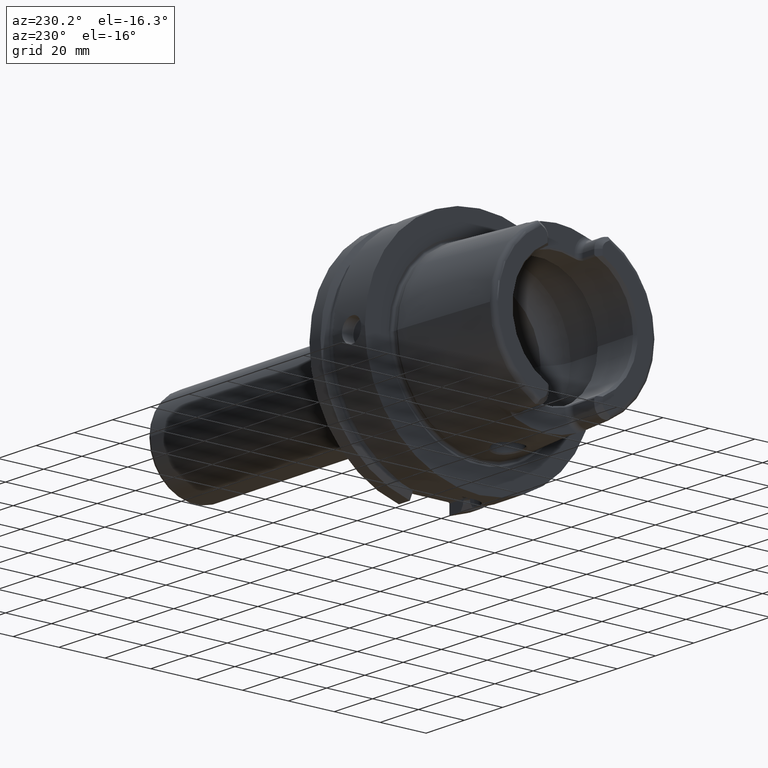
[diagram: clean part render]
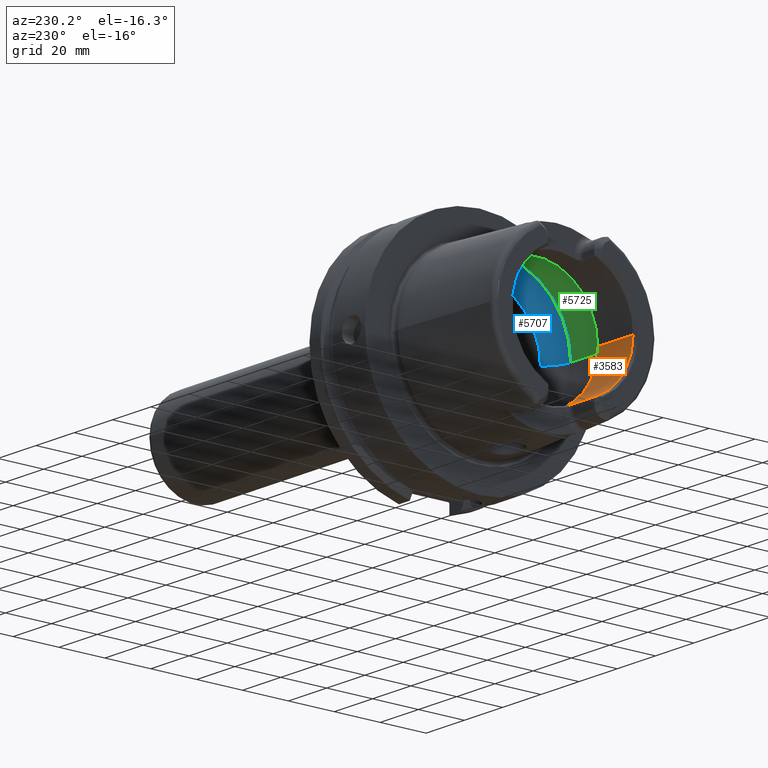
[diagram: same view with three faces highlighted in distinct colors, each labeled with its STEP entity id]
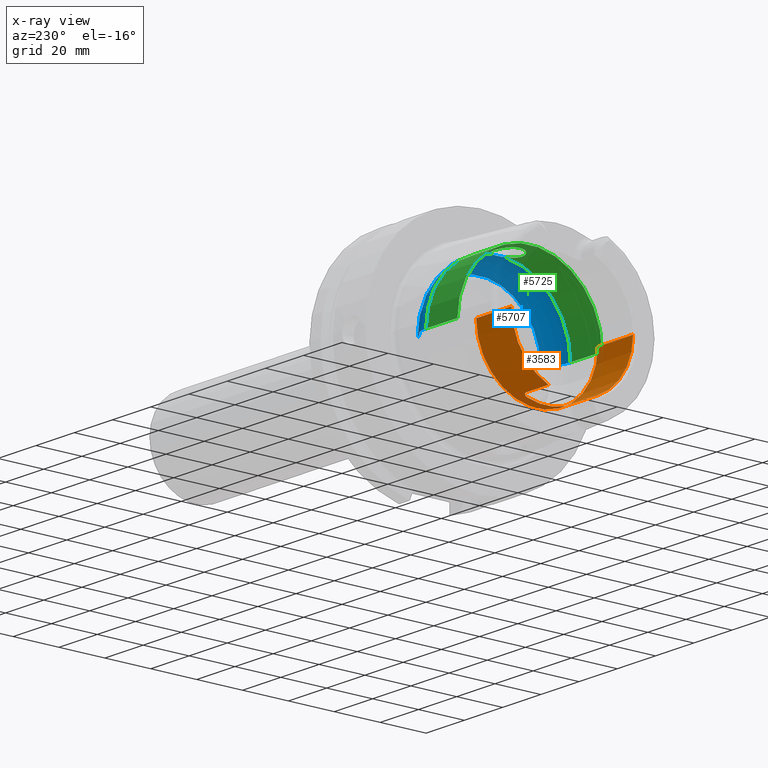
[diagram: x-ray of the same camera — body ghosted, the three highlighted faces saturated]
A machine part, auxiliary view with three faces highlighted in distinct colors.
The next image is the same camera in x-ray (body ghosted, the three faces saturated) — at least one of them is partly hidden behind the body in this view.
Their STEP definitions:

[orange] entity #3583 — the highlighted cylindrical surface (partial cylindrical patch) has radius 26.5 mm, axis along (1, 0, 0).
#152=CARTESIAN_POINT('',(-4.85E1,1.051E1,-2.432673220965E1));
#172=CARTESIAN_POINT('',(-4.85E1,0.E0,0.E0));
#173=DIRECTION('',(-1.E0,0.E0,0.E0));
#174=DIRECTION('',(0.E0,1.E0,0.E0));
#175=AXIS2_PLACEMENT_3D('',#172,#173,#174);
#180=CARTESIAN_POINT('',(-4.85E1,-1.051E1,-2.432673220965E1));
#182=CARTESIAN_POINT('',(-4.85E1,0.E0,0.E0));
#183=DIRECTION('',(-1.E0,0.E0,0.E0));
#184=DIRECTION('',(0.E0,-3.966037735849E-1,-9.179898947038E-1));
#185=AXIS2_PLACEMENT_3D('',#182,#183,#184);
#454=CARTESIAN_POINT('',(-4.85E1,-1.051E1,-2.432673220965E1));
#455=CARTESIAN_POINT('',(-4.846009940760E1,-1.047009940760E1,
-2.434397066250E1));
#456=CARTESIAN_POINT('',(-4.842017594144E1,-1.043017594144E1,
-2.436110250799E1));
#457=CARTESIAN_POINT('',(-4.838022966775E1,-1.039022966775E1,
-2.437812805470E1));
#459=DIRECTION('',(1.E0,0.E0,0.E0));
#460=VECTOR('',#459,1.138022966775E1);
#461=CARTESIAN_POINT('',(-4.838022966775E1,-1.039022966775E1,
-2.437812805470E1));
#462=LINE('',#461,#460);
#463=CARTESIAN_POINT('',(-3.471132486541E1,-8.01E0,-2.526044140549E1));
#464=CARTESIAN_POINT('',(-3.470878365387E1,-8.120563234659E0,
-2.522538218006E1));
#465=CARTESIAN_POINT('',(-3.471906599640E1,-8.340498761004E0,
-2.515406323082E1));
#466=CARTESIAN_POINT('',(-3.478267622202E1,-8.672586520945E0,
-2.504149237512E1));
#467=CARTESIAN_POINT('',(-3.489268945815E1,-8.989467647906E0,
-2.492938353432E1));
#468=CARTESIAN_POINT('',(-3.504052322957E1,-9.277750297862E0,
-2.482340953473E1));
#469=CARTESIAN_POINT('',(-3.522199090026E1,-9.537479373862E0,
-2.472468297045E1));
#470=CARTESIAN_POINT('',(-3.543924040038E1,-9.773195748090E0,
-2.463237051390E1));
#471=CARTESIAN_POINT('',(-3.569196362013E1,-9.980705213956E0,
-2.454892857931E1));
#472=CARTESIAN_POINT('',(-3.598453186629E1,-1.015759575719E1,
-2.447617541727E1));
#473=CARTESIAN_POINT('',(-3.632143240491E1,-1.029570459018E1,
-2.441829554687E1));
#474=CARTESIAN_POINT('',(-3.667918985616E1,-1.037618705974E1,
-2.438412368561E1));
#475=CARTESIAN_POINT('',(-3.689481839480E1,-1.039022966775E1,
-2.437812805470E1));
#476=CARTESIAN_POINT('',(-3.7E1,-1.039022966775E1,-2.437812805470E1));
#478=CARTESIAN_POINT('',(-3.471132486541E1,8.01E0,-2.526044140549E1));
#479=CARTESIAN_POINT('',(-3.471132486541E1,7.271271578955E0,-2.549468967366E1));
#480=CARTESIAN_POINT('',(-3.471132486546E1,5.773250992792E0,-2.589833317849E1));
#481=CARTESIAN_POINT('',(-3.471132486544E1,3.481810319461E0,-2.630458298809E1));
#482=CARTESIAN_POINT('',(-3.471132486544E1,1.163586982585E0,-2.650849211583E1));
#483=CARTESIAN_POINT('',(-3.471132486544E1,-1.163586982585E0,
-2.650849211583E1));
#484=CARTESIAN_POINT('',(-3.471132486544E1,-3.481810319461E0,
-2.630458298809E1));
#485=CARTESIAN_POINT('',(-3.471132486546E1,-5.773250992791E0,
-2.589833317849E1));
#486=CARTESIAN_POINT('',(-3.471132486541E1,-7.271271578958E0,
-2.549468967366E1));
#487=CARTESIAN_POINT('',(-3.471132486541E1,-8.01E0,-2.526044140549E1));
#489=CARTESIAN_POINT('',(-3.7E1,1.039022966775E1,-2.437812805470E1));
#490=CARTESIAN_POINT('',(-3.689375760304E1,1.039022966775E1,-2.437812805470E1));
#491=CARTESIAN_POINT('',(-3.667635124759E1,1.037592175927E1,-2.438423721529E1));
#492=CARTESIAN_POINT('',(-3.631623052643E1,1.029415408513E1,-2.441895189414E1));
#493=CARTESIAN_POINT('',(-3.597947032639E1,1.015497495082E1,-2.447726388108E1));
#494=CARTESIAN_POINT('',(-3.568903934051E1,9.978495762119E0,-2.454982411868E1));
#495=CARTESIAN_POINT('',(-3.543805179144E1,9.771970406757E0,-2.463285308238E1));
#496=CARTESIAN_POINT('',(-3.522178538203E1,9.537157318169E0,-2.472480442904E1));
#497=CARTESIAN_POINT('',(-3.504048499348E1,9.277715471543E0,-2.482342368645E1));
#498=CARTESIAN_POINT('',(-3.489237648633E1,8.988811706632E0,-2.492962282131E1));
#499=CARTESIAN_POINT('',(-3.478230284625E1,8.671343229943E0,-2.504192722240E1));
#500=CARTESIAN_POINT('',(-3.471884880625E1,8.338547582645E0,-2.515470883480E1));
#501=CARTESIAN_POINT('',(-3.470880260289E1,8.119738798873E0,-2.522564360584E1));
#502=CARTESIAN_POINT('',(-3.471132486541E1,8.01E0,-2.526044140549E1));
#504=DIRECTION('',(1.E0,0.E0,0.E0));
#505=VECTOR('',#504,1.138022966775E1);
#506=CARTESIAN_POINT('',(-4.838022966775E1,1.039022966775E1,-2.437812805470E1));
#507=LINE('',#506,#505);
#508=CARTESIAN_POINT('',(-4.838022966775E1,1.039022966775E1,-2.437812805470E1));
#509=CARTESIAN_POINT('',(-4.842017594144E1,1.043017594144E1,-2.436110250799E1));
#510=CARTESIAN_POINT('',(-4.846009940760E1,1.047009940760E1,-2.434397066250E1));
#511=CARTESIAN_POINT('',(-4.85E1,1.051E1,-2.432673220965E1));
#513=DIRECTION('',(-1.E0,0.E0,0.E0));
#514=VECTOR('',#513,1.849662432703E1);
#515=CARTESIAN_POINT('',(-3.000337567297E1,2.65E1,0.E0));
#516=LINE('',#515,#514);
#517=CARTESIAN_POINT('',(-3.000337567297E1,0.E0,0.E0));
#518=DIRECTION('',(-1.E0,0.E0,0.E0));
#519=DIRECTION('',(0.E0,1.E0,0.E0));
#520=AXIS2_PLACEMENT_3D('',#517,#518,#519);
#522=DIRECTION('',(-1.E0,0.E0,0.E0));
#523=VECTOR('',#522,1.849662432703E1);
#524=CARTESIAN_POINT('',(-3.000337567297E1,-2.65E1,0.E0));
#525=LINE('',#524,#523);
#2741=CARTESIAN_POINT('',(-3.000337567297E1,2.65E1,0.E0));
#2742=VERTEX_POINT('',#2741);
#2743=CARTESIAN_POINT('',(-4.85E1,2.65E1,0.E0));
#2744=VERTEX_POINT('',#2743);
#2753=CARTESIAN_POINT('',(-3.000337567297E1,-2.65E1,0.E0));
#2754=VERTEX_POINT('',#2753);
#2755=CARTESIAN_POINT('',(-4.85E1,-2.65E1,0.E0));
#2756=VERTEX_POINT('',#2755);
#2866=CARTESIAN_POINT('',(-3.7E1,-1.039022966775E1,-2.437812805470E1));
#2867=VERTEX_POINT('',#2866);
#2868=CARTESIAN_POINT('',(-3.471132486541E1,-8.01E0,-2.526044140549E1));
#2869=VERTEX_POINT('',#2868);
#2870=CARTESIAN_POINT('',(-3.7E1,1.039022966775E1,-2.437812805470E1));
#2871=VERTEX_POINT('',#2870);
#2872=CARTESIAN_POINT('',(-3.471132486541E1,8.01E0,-2.526044140549E1));
#2873=VERTEX_POINT('',#2872);
#2890=CARTESIAN_POINT('',(-4.838022966775E1,1.039022966775E1,
-2.437812805470E1));
#2891=VERTEX_POINT('',#2890);
#2892=VERTEX_POINT('',#152);
#2909=CARTESIAN_POINT('',(-4.838022966775E1,-1.039022966775E1,
-2.437812805470E1));
#2910=VERTEX_POINT('',#2909);
#2911=VERTEX_POINT('',#180);
#3556=CARTESIAN_POINT('',(-5.3125E1,0.E0,0.E0));
#3557=DIRECTION('',(1.E0,0.E0,0.E0));
#3558=DIRECTION('',(0.E0,-1.E0,0.E0));
#3559=AXIS2_PLACEMENT_3D('',#3556,#3557,#3558);
#3560=CYLINDRICAL_SURFACE('',#3559,2.65E1);
#3562=ORIENTED_EDGE('',*,*,#3561,.T.);
#3564=ORIENTED_EDGE('',*,*,#3563,.T.);
#3566=ORIENTED_EDGE('',*,*,#3565,.F.);
#3568=ORIENTED_EDGE('',*,*,#3567,.F.);
#3570=ORIENTED_EDGE('',*,*,#3569,.F.);
#3571=ORIENTED_EDGE('',*,*,#3548,.F.);
#3572=ORIENTED_EDGE('',*,*,#3280,.T.);
#3573=ORIENTED_EDGE('',*,*,#3302,.F.);
#3575=ORIENTED_EDGE('',*,*,#3574,.F.);
#3577=ORIENTED_EDGE('',*,*,#3576,.T.);
#3579=ORIENTED_EDGE('',*,*,#3578,.T.);
#3580=ORIENTED_EDGE('',*,*,#3314,.F.);
#3581=EDGE_LOOP('',(#3562,#3564,#3566,#3568,#3570,#3571,#3572,#3573,#3575,#3577,
#3579,#3580));
#3582=FACE_OUTER_BOUND('',#3581,.F.);
#3583=ADVANCED_FACE('',(#3582),#3560,.F.);
#176=CIRCLE('',#175,2.65E1);
#186=CIRCLE('',#185,2.65E1);
#458=B_SPLINE_CURVE_WITH_KNOTS('',3,(#454,#455,#456,#457),.UNSPECIFIED.,.F.,.F.,
(4,4),(0.E0,1.E0),.UNSPECIFIED.);
#477=B_SPLINE_CURVE_WITH_KNOTS('',3,(#463,#464,#465,#466,#467,#468,#469,#470,
#471,#472,#473,#474,#475,#476),.UNSPECIFIED.,.F.,.F.,(4,1,1,1,1,1,1,1,1,1,1,4),(
0.E0,9.090909090909E-2,1.818181818182E-1,2.727272727273E-1,3.636363636364E-1,
4.545454545455E-1,5.454545454545E-1,6.363636363636E-1,7.272727272727E-1,
8.181818181818E-1,9.090909090909E-1,1.E0),.UNSPECIFIED.);
#488=B_SPLINE_CURVE_WITH_KNOTS('',3,(#478,#479,#480,#481,#482,#483,#484,#485,
#486,#487),.UNSPECIFIED.,.F.,.F.,(4,1,1,1,1,1,1,4),(0.E0,1.428571428571E-1,
2.857142857143E-1,4.285714285714E-1,5.714285714286E-1,7.142857142857E-1,
8.571428571429E-1,1.E0),.UNSPECIFIED.);
#503=B_SPLINE_CURVE_WITH_KNOTS('',3,(#489,#490,#491,#492,#493,#494,#495,#496,
#497,#498,#499,#500,#501,#502),.UNSPECIFIED.,.F.,.F.,(4,1,1,1,1,1,1,1,1,1,1,4),(
0.E0,9.090909090909E-2,1.818181818182E-1,2.727272727273E-1,3.636363636364E-1,
4.545454545455E-1,5.454545454545E-1,6.363636363636E-1,7.272727272727E-1,
8.181818181818E-1,9.090909090909E-1,1.E0),.UNSPECIFIED.);
#512=B_SPLINE_CURVE_WITH_KNOTS('',3,(#508,#509,#510,#511),.UNSPECIFIED.,.F.,.F.,
(4,4),(0.E0,1.E0),.UNSPECIFIED.);
#521=CIRCLE('',#520,2.65E1);
#3280=EDGE_CURVE('',#2891,#2892,#512,.T.);
#3302=EDGE_CURVE('',#2744,#2892,#176,.T.);
#3314=EDGE_CURVE('',#2911,#2756,#186,.T.);
#3548=EDGE_CURVE('',#2891,#2871,#507,.T.);
#3561=EDGE_CURVE('',#2911,#2910,#458,.T.);
#3563=EDGE_CURVE('',#2910,#2867,#462,.T.);
#3565=EDGE_CURVE('',#2869,#2867,#477,.T.);
#3567=EDGE_CURVE('',#2873,#2869,#488,.T.);
#3569=EDGE_CURVE('',#2871,#2873,#503,.T.);
#3574=EDGE_CURVE('',#2742,#2744,#516,.T.);
#3576=EDGE_CURVE('',#2742,#2754,#521,.T.);
#3578=EDGE_CURVE('',#2754,#2756,#525,.T.);

[blue] entity #5707 — the highlighted toroidal blend (fillet) surface has major radius 19.5 mm and minor (blend) radius 12 mm.
#2062=CARTESIAN_POINT('',(-9.E0,0.E0,3.147008518506E1));
#2063=CARTESIAN_POINT('',(-9.E0,2.141252053900E-1,3.147008518506E1));
#2064=CARTESIAN_POINT('',(-9.022897579641E0,6.436731047292E-1,
3.146736073712E1));
#2065=CARTESIAN_POINT('',(-9.127427069178E0,1.286248325661E0,3.145454181001E1));
#2066=CARTESIAN_POINT('',(-9.301031145484E0,1.913730198969E0,3.143197920586E1));
#2067=CARTESIAN_POINT('',(-9.539946842554E0,2.515068696018E0,3.139832080387E1));
#2068=CARTESIAN_POINT('',(-9.738529982809E0,2.891645116602E0,3.136752560017E1));
#2069=CARTESIAN_POINT('',(-9.846794344809E0,3.073185883624E0,3.134972932139E1));
#2071=CARTESIAN_POINT('',(-9.846794344809E0,-3.073185883624E0,
3.134972932139E1));
#2072=CARTESIAN_POINT('',(-9.738534471789E0,-2.891652643851E0,
3.136752486228E1));
#2073=CARTESIAN_POINT('',(-9.539946477828E0,-2.515078628379E0,
3.139832107651E1));
#2074=CARTESIAN_POINT('',(-9.300974895981E0,-1.913573808680E0,
3.143198691417E1));
#2075=CARTESIAN_POINT('',(-9.127396838585E0,-1.286102505522E0,
3.145454553504E1));
#2076=CARTESIAN_POINT('',(-9.022886850943E0,-6.435548392987E-1,
3.146736203025E1));
#2077=CARTESIAN_POINT('',(-9.E0,-2.140793620984E-1,3.147008518506E1));
#2078=CARTESIAN_POINT('',(-9.E0,0.E0,3.147008518506E1));
#2080=CARTESIAN_POINT('',(-1.E-1,0.E0,0.E0));
#2081=DIRECTION('',(1.E0,0.E0,0.E0));
#2082=DIRECTION('',(0.E0,1.E0,0.E0));
#2083=AXIS2_PLACEMENT_3D('',#2080,#2081,#2082);
#2109=CARTESIAN_POINT('',(-9.846794344809E0,0.E0,0.E0));
#2110=DIRECTION('',(1.E0,0.E0,0.E0));
#2111=DIRECTION('',(0.E0,1.E0,0.E0));
#2112=AXIS2_PLACEMENT_3D('',#2109,#2110,#2111);
#2114=CARTESIAN_POINT('',(-9.846794344809E0,0.E0,0.E0));
#2115=DIRECTION('',(1.E0,0.E0,0.E0));
#2116=DIRECTION('',(0.E0,-9.756145662299E-2,9.952295022665E-1));
#2117=AXIS2_PLACEMENT_3D('',#2114,#2115,#2116);
#2218=CARTESIAN_POINT('',(-9.846794344809E0,1.95E1,0.E0));
#2219=DIRECTION('',(0.E0,0.E0,1.E0));
#2220=DIRECTION('',(8.122328620674E-1,5.833333333333E-1,0.E0));
#2221=AXIS2_PLACEMENT_3D('',#2218,#2219,#2220);
#2228=CARTESIAN_POINT('',(-9.846794344809E0,-1.95E1,0.E0));
#2229=DIRECTION('',(0.E0,0.E0,-1.E0));
#2230=DIRECTION('',(8.122328620674E-1,-5.833333333333E-1,0.E0));
#2231=AXIS2_PLACEMENT_3D('',#2228,#2229,#2230);
#2733=CARTESIAN_POINT('',(-1.E-1,2.65E1,0.E0));
#2734=VERTEX_POINT('',#2733);
#2735=CARTESIAN_POINT('',(-9.846794344809E0,3.15E1,0.E0));
#2736=VERTEX_POINT('',#2735);
#2745=CARTESIAN_POINT('',(-1.E-1,-2.65E1,0.E0));
#2746=VERTEX_POINT('',#2745);
#2747=CARTESIAN_POINT('',(-9.846794344809E0,-3.15E1,0.E0));
#2748=VERTEX_POINT('',#2747);
#2914=VERTEX_POINT('',#2062);
#2915=VERTEX_POINT('',#2069);
#2916=VERTEX_POINT('',#2071);
#5688=CARTESIAN_POINT('',(-9.846794344809E0,0.E0,0.E0));
#5689=DIRECTION('',(1.E0,0.E0,0.E0));
#5690=DIRECTION('',(0.E0,-1.E0,0.E0));
#5691=AXIS2_PLACEMENT_3D('',#5688,#5689,#5690);
#5692=TOROIDAL_SURFACE('',#5691,1.95E1,1.2E1);
#5693=ORIENTED_EDGE('',*,*,#5665,.F.);
#5694=ORIENTED_EDGE('',*,*,#5391,.F.);
#5696=ORIENTED_EDGE('',*,*,#5695,.T.);
#5698=ORIENTED_EDGE('',*,*,#5697,.F.);
#5700=ORIENTED_EDGE('',*,*,#5699,.F.);
#5702=ORIENTED_EDGE('',*,*,#5701,.T.);
#5704=ORIENTED_EDGE('',*,*,#5703,.T.);
#5705=EDGE_LOOP('',(#5693,#5694,#5696,#5698,#5700,#5702,#5704));
#5706=FACE_OUTER_BOUND('',#5705,.F.);
#5707=ADVANCED_FACE('',(#5706),#5692,.F.);
#2070=B_SPLINE_CURVE_WITH_KNOTS('',3,(#2062,#2063,#2064,#2065,#2066,#2067,#2068,
#2069),.UNSPECIFIED.,.F.,.F.,(4,1,1,1,1,4),(0.E0,2.E-1,4.E-1,6.E-1,8.E-1,1.E0),
.UNSPECIFIED.);
#2079=B_SPLINE_CURVE_WITH_KNOTS('',3,(#2071,#2072,#2073,#2074,#2075,#2076,#2077,
#2078),.UNSPECIFIED.,.F.,.F.,(4,1,1,1,1,4),(0.E0,2.E-1,4.E-1,6.E-1,8.E-1,1.E0),
.UNSPECIFIED.);
#2084=CIRCLE('',#2083,2.65E1);
#2113=CIRCLE('',#2112,3.15E1);
#2118=CIRCLE('',#2117,3.15E1);
#2222=CIRCLE('',#2221,1.2E1);
#2232=CIRCLE('',#2231,1.2E1);
#5391=EDGE_CURVE('',#2916,#2914,#2079,.T.);
#5665=EDGE_CURVE('',#2914,#2915,#2070,.T.);
#5695=EDGE_CURVE('',#2916,#2748,#2118,.T.);
#5697=EDGE_CURVE('',#2746,#2748,#2232,.T.);
#5699=EDGE_CURVE('',#2734,#2746,#2084,.T.);
#5701=EDGE_CURVE('',#2734,#2736,#2222,.T.);
#5703=EDGE_CURVE('',#2736,#2915,#2113,.T.);

[green] entity #5725 — the highlighted cylindrical surface (partial cylindrical patch) has radius 31.5 mm, axis along (1, 0, 0).
#2069=CARTESIAN_POINT('',(-9.846794344809E0,3.073185883624E0,3.134972932139E1));
#2071=CARTESIAN_POINT('',(-9.846794344809E0,-3.073185883624E0,
3.134972932139E1));
#2085=CARTESIAN_POINT('',(-9.846794344809E0,3.073185883624E0,3.134972932139E1));
#2086=CARTESIAN_POINT('',(-9.979350610583E0,3.295460007053E0,3.132793998818E1));
#2087=CARTESIAN_POINT('',(-1.027063887730E1,3.719249728918E0,3.128166137702E1));
#2088=CARTESIAN_POINT('',(-1.079035808135E1,4.298920478732E0,3.120689190392E1));
#2089=CARTESIAN_POINT('',(-1.137898274965E1,4.805041081809E0,3.113254787077E1));
#2090=CARTESIAN_POINT('',(-1.202658779818E1,5.230450418473E0,3.106351678434E1));
#2091=CARTESIAN_POINT('',(-1.271973952812E1,5.567575114105E0,3.100453126817E1));
#2092=CARTESIAN_POINT('',(-1.345035493347E1,5.813488696578E0,3.095911024256E1));
#2093=CARTESIAN_POINT('',(-1.420764120587E1,5.964169161635E0,3.093027187856E1));
#2094=CARTESIAN_POINT('',(-1.497984446875E1,6.016521870398E0,3.092007259785E1));
#2095=CARTESIAN_POINT('',(-1.575309935594E1,5.969543750814E0,3.092922961197E1));
#2096=CARTESIAN_POINT('',(-1.652541066125E1,5.820717381311E0,3.095775345043E1));
#2097=CARTESIAN_POINT('',(-1.727341934717E1,5.571094163642E0,3.100391709528E1));
#2098=CARTESIAN_POINT('',(-1.797719195757E1,5.228690177102E0,3.106382935769E1));
#2099=CARTESIAN_POINT('',(-1.863207171596E1,4.797562142056E0,3.113375842146E1));
#2100=CARTESIAN_POINT('',(-1.923624043330E1,4.274224967480E0,3.121040427516E1));
#2101=CARTESIAN_POINT('',(-1.976613927382E1,3.673557002686E0,3.128721124755E1));
#2102=CARTESIAN_POINT('',(-2.020637808011E1,3.016563255921E0,3.135771603394E1));
#2103=CARTESIAN_POINT('',(-2.055582787998E1,2.311076998962E0,3.141795380196E1));
#2104=CARTESIAN_POINT('',(-2.081257397864E1,1.557663843048E0,3.146462805191E1));
#2105=CARTESIAN_POINT('',(-2.096662575255E1,7.779183163064E-1,
3.149361665994E1));
#2106=CARTESIAN_POINT('',(-2.1E1,2.599995876471E-1,3.15E1));
#2107=CARTESIAN_POINT('',(-2.1E1,0.E0,3.15E1));
#2109=CARTESIAN_POINT('',(-9.846794344809E0,0.E0,0.E0));
#2110=DIRECTION('',(1.E0,0.E0,0.E0));
#2111=DIRECTION('',(0.E0,1.E0,0.E0));
#2112=AXIS2_PLACEMENT_3D('',#2109,#2110,#2111);
#2114=CARTESIAN_POINT('',(-9.846794344809E0,0.E0,0.E0));
#2115=DIRECTION('',(1.E0,0.E0,0.E0));
#2116=DIRECTION('',(0.E0,-9.756145662299E-2,9.952295022665E-1));
#2117=AXIS2_PLACEMENT_3D('',#2114,#2115,#2116);
#2119=CARTESIAN_POINT('',(-2.1E1,0.E0,3.15E1));
#2120=CARTESIAN_POINT('',(-2.1E1,-2.571227322628E-1,3.15E1));
#2121=CARTESIAN_POINT('',(-2.096736472421E1,-7.693984126219E-1,
3.149375838501E1));
#2122=CARTESIAN_POINT('',(-2.081659080202E1,-1.541049857093E0,
3.146537963405E1));
#2123=CARTESIAN_POINT('',(-2.056550243220E1,-2.286682308644E0,
3.141968549161E1));
#2124=CARTESIAN_POINT('',(-2.022340587255E1,-2.986151195866E0,
3.136058293097E1));
#2125=CARTESIAN_POINT('',(-1.979326828629E1,-3.637340617479E0,
3.129140992251E1));
#2126=CARTESIAN_POINT('',(-1.927478905529E1,-4.235071698102E0,
3.121573223434E1));
#2127=CARTESIAN_POINT('',(-1.868247740736E1,-4.758599460883E0,
3.113974969594E1));
#2128=CARTESIAN_POINT('',(-1.803686661027E1,-5.194005287447E0,
3.106967109408E1));
#2129=CARTESIAN_POINT('',(-1.734161583992E1,-5.542612510908E0,
3.100904668501E1));
#2130=CARTESIAN_POINT('',(-1.659831672384E1,-5.801097428712E0,
3.096145823760E1));
#2131=CARTESIAN_POINT('',(-1.582796267308E1,-5.959654019058E0,
3.093114785940E1));
#2132=CARTESIAN_POINT('',(-1.505461105168E1,-6.016295452388E0,
3.092011677740E1));
#2133=CARTESIAN_POINT('',(-1.428037054876E1,-5.973681036842E0,
3.092842594800E1));
#2134=CARTESIAN_POINT('',(-1.350797364848E1,-5.829331845562E0,
3.095612333536E1));
#2135=CARTESIAN_POINT('',(-1.275967231567E1,-5.584336729774E0,
3.100151619127E1));
#2136=CARTESIAN_POINT('',(-1.205825931241E1,-5.248465876117E0,
3.106046672590E1));
#2137=CARTESIAN_POINT('',(-1.140515180586E1,-4.825059400574E0,
3.112945635419E1));
#2138=CARTESIAN_POINT('',(-1.080442776173E1,-4.313579447853E0,
3.120492076547E1));
#2139=CARTESIAN_POINT('',(-1.027427619122E1,-3.724621952008E0,
3.128107616940E1));
#2140=CARTESIAN_POINT('',(-9.980265351482E0,-3.296993870656E0,
3.132778962490E1));
#2141=CARTESIAN_POINT('',(-9.846794344809E0,-3.073185883624E0,
3.134972932139E1));
#2196=DIRECTION('',(-1.E0,0.E0,0.E0));
#2197=VECTOR('',#2196,1.640380457843E1);
#2198=CARTESIAN_POINT('',(-9.846794344809E0,-3.15E1,0.E0));
#2199=LINE('',#2198,#2197);
#2200=DIRECTION('',(-1.E0,0.E0,0.E0));
#2201=VECTOR('',#2200,1.640380457843E1);
#2202=CARTESIAN_POINT('',(-9.846794344809E0,3.15E1,0.E0));
#2203=LINE('',#2202,#2201);
#2453=CARTESIAN_POINT('',(-2.625059892324E1,0.E0,0.E0));
#2454=DIRECTION('',(1.E0,0.E0,0.E0));
#2455=DIRECTION('',(0.E0,1.E0,0.E0));
#2456=AXIS2_PLACEMENT_3D('',#2453,#2454,#2455);
#2735=CARTESIAN_POINT('',(-9.846794344809E0,3.15E1,0.E0));
#2736=VERTEX_POINT('',#2735);
#2737=CARTESIAN_POINT('',(-2.625059892324E1,3.15E1,0.E0));
#2738=VERTEX_POINT('',#2737);
#2747=CARTESIAN_POINT('',(-9.846794344809E0,-3.15E1,0.E0));
#2748=VERTEX_POINT('',#2747);
#2749=CARTESIAN_POINT('',(-2.625059892324E1,-3.15E1,0.E0));
#2750=VERTEX_POINT('',#2749);
#2915=VERTEX_POINT('',#2069);
#2916=VERTEX_POINT('',#2071);
#2917=VERTEX_POINT('',#2107);
#5708=CARTESIAN_POINT('',(-5.3125E1,0.E0,0.E0));
#5709=DIRECTION('',(1.E0,0.E0,0.E0));
#5710=DIRECTION('',(0.E0,-1.E0,0.E0));
#5711=AXIS2_PLACEMENT_3D('',#5708,#5709,#5710);
#5712=CYLINDRICAL_SURFACE('',#5711,3.15E1);
#5713=ORIENTED_EDGE('',*,*,#5667,.F.);
#5714=ORIENTED_EDGE('',*,*,#5703,.F.);
#5716=ORIENTED_EDGE('',*,*,#5715,.T.);
#5718=ORIENTED_EDGE('',*,*,#5717,.T.);
#5720=ORIENTED_EDGE('',*,*,#5719,.F.);
#5721=ORIENTED_EDGE('',*,*,#5695,.F.);
#5722=ORIENTED_EDGE('',*,*,#5389,.F.);
#5723=EDGE_LOOP('',(#5713,#5714,#5716,#5718,#5720,#5721,#5722));
#5724=FACE_OUTER_BOUND('',#5723,.F.);
#5725=ADVANCED_FACE('',(#5724),#5712,.F.);
#2108=B_SPLINE_CURVE_WITH_KNOTS('',3,(#2085,#2086,#2087,#2088,#2089,#2090,#2091,
#2092,#2093,#2094,#2095,#2096,#2097,#2098,#2099,#2100,#2101,#2102,#2103,#2104,
#2105,#2106,#2107),.UNSPECIFIED.,.F.,.F.,(4,1,1,1,1,1,1,1,1,1,1,1,1,1,1,1,1,1,1,
1,4),(0.E0,5.E-2,1.E-1,1.5E-1,2.E-1,2.5E-1,3.E-1,3.5E-1,4.E-1,4.5E-1,5.E-1,
5.5E-1,6.E-1,6.5E-1,7.E-1,7.5E-1,8.E-1,8.5E-1,9.E-1,9.5E-1,1.E0),.UNSPECIFIED.);
#2113=CIRCLE('',#2112,3.15E1);
#2118=CIRCLE('',#2117,3.15E1);
#2142=B_SPLINE_CURVE_WITH_KNOTS('',3,(#2119,#2120,#2121,#2122,#2123,#2124,#2125,
#2126,#2127,#2128,#2129,#2130,#2131,#2132,#2133,#2134,#2135,#2136,#2137,#2138,
#2139,#2140,#2141),.UNSPECIFIED.,.F.,.F.,(4,1,1,1,1,1,1,1,1,1,1,1,1,1,1,1,1,1,1,
1,4),(0.E0,5.E-2,1.E-1,1.5E-1,2.E-1,2.5E-1,3.E-1,3.5E-1,4.E-1,4.5E-1,5.E-1,
5.5E-1,6.E-1,6.5E-1,7.E-1,7.5E-1,8.E-1,8.5E-1,9.E-1,9.5E-1,1.E0),.UNSPECIFIED.);
#2457=CIRCLE('',#2456,3.15E1);
#5389=EDGE_CURVE('',#2917,#2916,#2142,.T.);
#5667=EDGE_CURVE('',#2915,#2917,#2108,.T.);
#5695=EDGE_CURVE('',#2916,#2748,#2118,.T.);
#5703=EDGE_CURVE('',#2736,#2915,#2113,.T.);
#5715=EDGE_CURVE('',#2736,#2738,#2203,.T.);
#5717=EDGE_CURVE('',#2738,#2750,#2457,.T.);
#5719=EDGE_CURVE('',#2748,#2750,#2199,.T.);